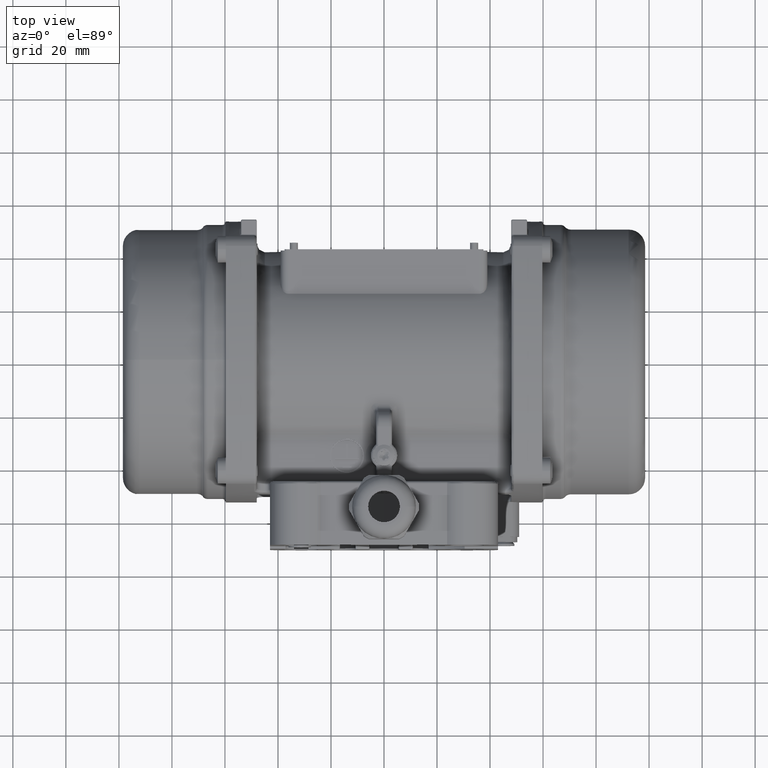
[diagram: clean part render]
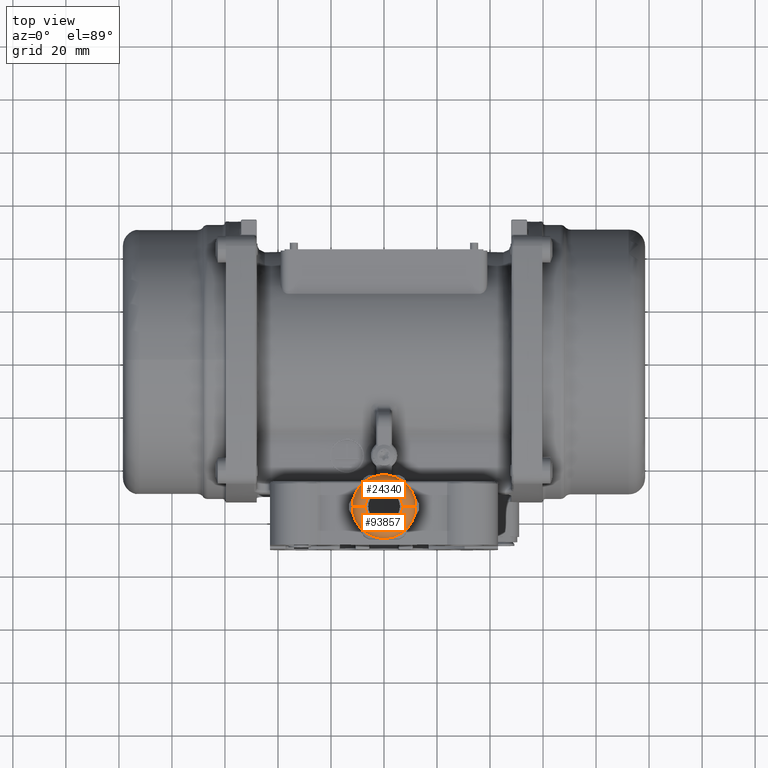
[diagram: same view with one multi-face feature highlighted, each face labeled with its STEP entity id]
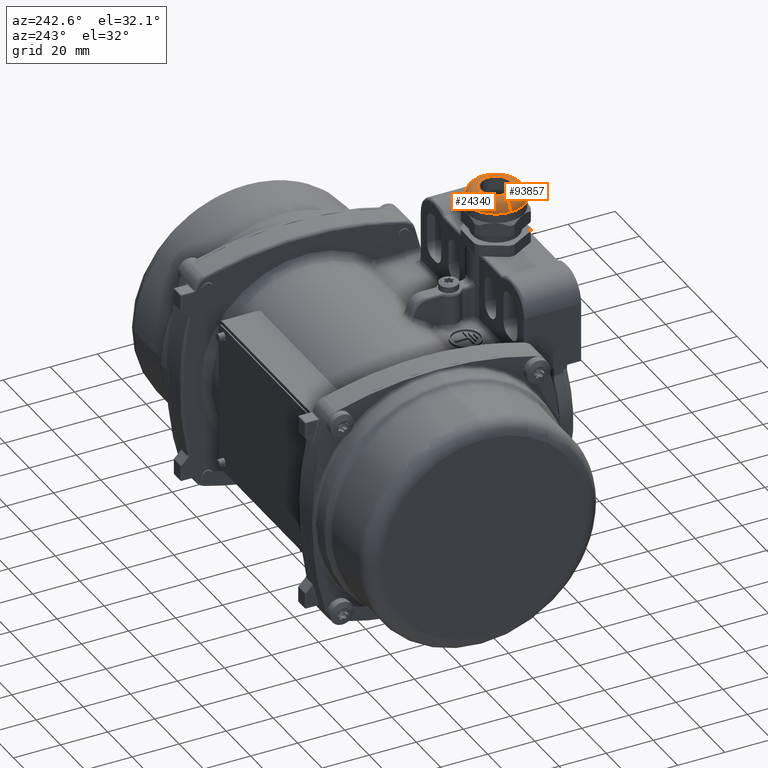
[diagram: same view with one multi-face feature highlighted, each face labeled with its STEP entity id]
A machine part, top view. The highlighted faces form ONE feature: a constant-radius fillet chain: 2 tangent blend faces with common blend radius 5 mm. The faces share edges in the B-rep.
A second angle (auxiliary view) of the same feature is appended — it is thin or edge-on in the first view.
Their STEP definitions:
[1] entity #24340 (Torus):
#1838 = CIRCLE ( 'NONE', #87179, 12.00000000000000000 ) ;
#2938 = CARTESIAN_POINT ( 'NONE',  ( -1.016369200025500000E-014, -56.00000000000000000, 80.50000000000000000 ) ) ;
#6263 = VERTEX_POINT ( 'NONE', #33115 ) ;
#12038 = EDGE_CURVE ( 'NONE', #114233, #102361, #85288, .T. ) ;
#12410 = CARTESIAN_POINT ( 'NONE',  ( -6.999999999999998200, -56.00000000000000000, 80.50000000000000000 ) ) ;
#15697 = EDGE_CURVE ( 'NONE', #6263, #122167, #117304, .T. ) ;
#17636 = DIRECTION ( 'NONE',  ( 0.0000000000000000000, 6.123032000000000300E-017, 1.000000000000000000 ) ) ;
#20936 = DIRECTION ( 'NONE',  ( 6.123032000000000300E-017, -1.000000000000000000, 6.123032000000000300E-017 ) ) ;
#24340 = ADVANCED_FACE ( 'NONE', ( #40821 ), #92333, .T. ) ;
#27920 = DIRECTION ( 'NONE',  ( 1.000000000000000000, 0.0000000000000000000, 0.0000000000000000000 ) ) ;
#29163 = CARTESIAN_POINT ( 'NONE',  ( 7.000000000000001800, -56.00000000000000000, 80.50000000000000000 ) ) ;
#33115 = CARTESIAN_POINT ( 'NONE',  ( 11.99999999999999600, -56.00000000000000000, 80.50000000000000000 ) ) ;
#38788 = EDGE_CURVE ( 'NONE', #122167, #102361, #91304, .T. ) ;
#40821 = FACE_OUTER_BOUND ( 'NONE', #99143, .T. ) ;
#41912 = DIRECTION ( 'NONE',  ( 0.0000000000000000000, 6.123032000000000300E-017, 1.000000000000000000 ) ) ;
#46270 = EDGE_CURVE ( 'NONE', #6263, #114233, #1838, .T. ) ;
#62534 = AXIS2_PLACEMENT_3D ( 'NONE', #111981, #17636, #27920 ) ;
#63219 = AXIS2_PLACEMENT_3D ( 'NONE', #93399, #41912, #97572 ) ;
#67562 = DIRECTION ( 'NONE',  ( 0.0000000000000000000, 6.123032000000000300E-017, 1.000000000000000000 ) ) ;
#69374 = AXIS2_PLACEMENT_3D ( 'NONE', #29163, #20936, #85988 ) ;
#74526 = CARTESIAN_POINT ( 'NONE',  ( -12.00000000000000400, -56.00000000000000000, 80.50000000000000000 ) ) ;
#75912 = ORIENTED_EDGE ( 'NONE', *, *, #15697, .F. ) ;
#77028 = ORIENTED_EDGE ( 'NONE', *, *, #38788, .F. ) ;
#85288 = CIRCLE ( 'NONE', #110198, 5.000000000000000000 ) ;
#85988 = DIRECTION ( 'NONE',  ( 0.0000000000000000000, 0.0000000000000000000, -1.000000000000000000 ) ) ;
#86104 = DIRECTION ( 'NONE',  ( 1.000000000000000000, 0.0000000000000000000, 0.0000000000000000000 ) ) ;
#87179 = AXIS2_PLACEMENT_3D ( 'NONE', #2938, #67562, #86104 ) ;
#91304 = CIRCLE ( 'NONE', #62534, 7.000000000000000000 ) ;
#92333 = TOROIDAL_SURFACE ( 'NONE', #63219, 7.000000000000000000, 5.000000000000000000 ) ;
#93399 = CARTESIAN_POINT ( 'NONE',  ( 2.120102996881114700E-015, -56.00000000000000000, 80.50000000000000000 ) ) ;
#96781 = CARTESIAN_POINT ( 'NONE',  ( -6.999999999999998200, -56.00000000000000000, 85.50000000000000000 ) ) ;
#97572 = DIRECTION ( 'NONE',  ( 1.000000000000000000, 0.0000000000000000000, 0.0000000000000000000 ) ) ;
#99143 = EDGE_LOOP ( 'NONE', ( #99389, #113763, #77028, #75912 ) ) ;
#99389 = ORIENTED_EDGE ( 'NONE', *, *, #46270, .T. ) ;
#101596 = CARTESIAN_POINT ( 'NONE',  ( 7.000000000000001800, -56.00000000000000000, 85.50000000000000000 ) ) ;
#102361 = VERTEX_POINT ( 'NONE', #96781 ) ;
#106830 = DIRECTION ( 'NONE',  ( 6.123435991473531800E-017, 1.000000000000000000, -6.123032000000000300E-017 ) ) ;
#110198 = AXIS2_PLACEMENT_3D ( 'NONE', #12410, #106830, #116274 ) ;
#111981 = CARTESIAN_POINT ( 'NONE',  ( 2.120102996881114700E-015, -56.00000000000000000, 85.50000000000000000 ) ) ;
#113763 = ORIENTED_EDGE ( 'NONE', *, *, #12038, .T. ) ;
#114233 = VERTEX_POINT ( 'NONE', #74526 ) ;
#116274 = DIRECTION ( 'NONE',  ( -1.000000000000000000, 0.0000000000000000000, 0.0000000000000000000 ) ) ;
#117304 = CIRCLE ( 'NONE', #69374, 5.000000000000004400 ) ;
#122167 = VERTEX_POINT ( 'NONE', #101596 ) ;
[2] entity #93857 (Torus):
#769 = DIRECTION ( 'NONE',  ( 1.000000000000000000, 0.0000000000000000000, 0.0000000000000000000 ) ) ;
#6263 = VERTEX_POINT ( 'NONE', #33115 ) ;
#7284 = TOROIDAL_SURFACE ( 'NONE', #23053, 7.000000000000000000, 5.000000000000000000 ) ;
#7972 = CARTESIAN_POINT ( 'NONE',  ( 2.120102996881114700E-015, -56.00000000000000000, 80.50000000000000000 ) ) ;
#11041 = DIRECTION ( 'NONE',  ( 0.0000000000000000000, 6.123032000000000300E-017, 1.000000000000000000 ) ) ;
#12038 = EDGE_CURVE ( 'NONE', #114233, #102361, #85288, .T. ) ;
#12410 = CARTESIAN_POINT ( 'NONE',  ( -6.999999999999998200, -56.00000000000000000, 80.50000000000000000 ) ) ;
#15697 = EDGE_CURVE ( 'NONE', #6263, #122167, #117304, .T. ) ;
#17379 = DIRECTION ( 'NONE',  ( 0.0000000000000000000, 6.123032000000000300E-017, 1.000000000000000000 ) ) ;
#20936 = DIRECTION ( 'NONE',  ( 6.123032000000000300E-017, -1.000000000000000000, 6.123032000000000300E-017 ) ) ;
#23053 = AXIS2_PLACEMENT_3D ( 'NONE', #7972, #74270, #83769 ) ;
#28079 = DIRECTION ( 'NONE',  ( 1.000000000000000000, 0.0000000000000000000, 0.0000000000000000000 ) ) ;
#29163 = CARTESIAN_POINT ( 'NONE',  ( 7.000000000000001800, -56.00000000000000000, 80.50000000000000000 ) ) ;
#31437 = ORIENTED_EDGE ( 'NONE', *, *, #12038, .F. ) ;
#33115 = CARTESIAN_POINT ( 'NONE',  ( 11.99999999999999600, -56.00000000000000000, 80.50000000000000000 ) ) ;
#36741 = FACE_OUTER_BOUND ( 'NONE', #49876, .T. ) ;
#37954 = CARTESIAN_POINT ( 'NONE',  ( -1.016369200025500000E-014, -56.00000000000000000, 80.50000000000000000 ) ) ;
#48971 = ORIENTED_EDGE ( 'NONE', *, *, #76963, .T. ) ;
#49769 = ORIENTED_EDGE ( 'NONE', *, *, #56282, .F. ) ;
#49876 = EDGE_LOOP ( 'NONE', ( #31437, #48971, #71107, #49769 ) ) ;
#56282 = EDGE_CURVE ( 'NONE', #102361, #122167, #122280, .T. ) ;
#69374 = AXIS2_PLACEMENT_3D ( 'NONE', #29163, #20936, #85988 ) ;
#71107 = ORIENTED_EDGE ( 'NONE', *, *, #15697, .T. ) ;
#74270 = DIRECTION ( 'NONE',  ( 0.0000000000000000000, 6.123032000000000300E-017, 1.000000000000000000 ) ) ;
#74526 = CARTESIAN_POINT ( 'NONE',  ( -12.00000000000000400, -56.00000000000000000, 80.50000000000000000 ) ) ;
#76963 = EDGE_CURVE ( 'NONE', #114233, #6263, #117992, .T. ) ;
#83769 = DIRECTION ( 'NONE',  ( 1.000000000000000000, 0.0000000000000000000, 0.0000000000000000000 ) ) ;
#85288 = CIRCLE ( 'NONE', #110198, 5.000000000000000000 ) ;
#85988 = DIRECTION ( 'NONE',  ( 0.0000000000000000000, 0.0000000000000000000, -1.000000000000000000 ) ) ;
#93857 = ADVANCED_FACE ( 'NONE', ( #36741 ), #7284, .T. ) ;
#96781 = CARTESIAN_POINT ( 'NONE',  ( -6.999999999999998200, -56.00000000000000000, 85.50000000000000000 ) ) ;
#101596 = CARTESIAN_POINT ( 'NONE',  ( 7.000000000000001800, -56.00000000000000000, 85.50000000000000000 ) ) ;
#102361 = VERTEX_POINT ( 'NONE', #96781 ) ;
#105322 = AXIS2_PLACEMENT_3D ( 'NONE', #105449, #11041, #769 ) ;
#105449 = CARTESIAN_POINT ( 'NONE',  ( 2.120102996881114700E-015, -56.00000000000000000, 85.50000000000000000 ) ) ;
#106830 = DIRECTION ( 'NONE',  ( 6.123435991473531800E-017, 1.000000000000000000, -6.123032000000000300E-017 ) ) ;
#110198 = AXIS2_PLACEMENT_3D ( 'NONE', #12410, #106830, #116274 ) ;
#110606 = AXIS2_PLACEMENT_3D ( 'NONE', #37954, #17379, #28079 ) ;
#114233 = VERTEX_POINT ( 'NONE', #74526 ) ;
#116274 = DIRECTION ( 'NONE',  ( -1.000000000000000000, 0.0000000000000000000, 0.0000000000000000000 ) ) ;
#117304 = CIRCLE ( 'NONE', #69374, 5.000000000000004400 ) ;
#117992 = CIRCLE ( 'NONE', #110606, 12.00000000000000000 ) ;
#122167 = VERTEX_POINT ( 'NONE', #101596 ) ;
#122280 = CIRCLE ( 'NONE', #105322, 7.000000000000000000 ) ;